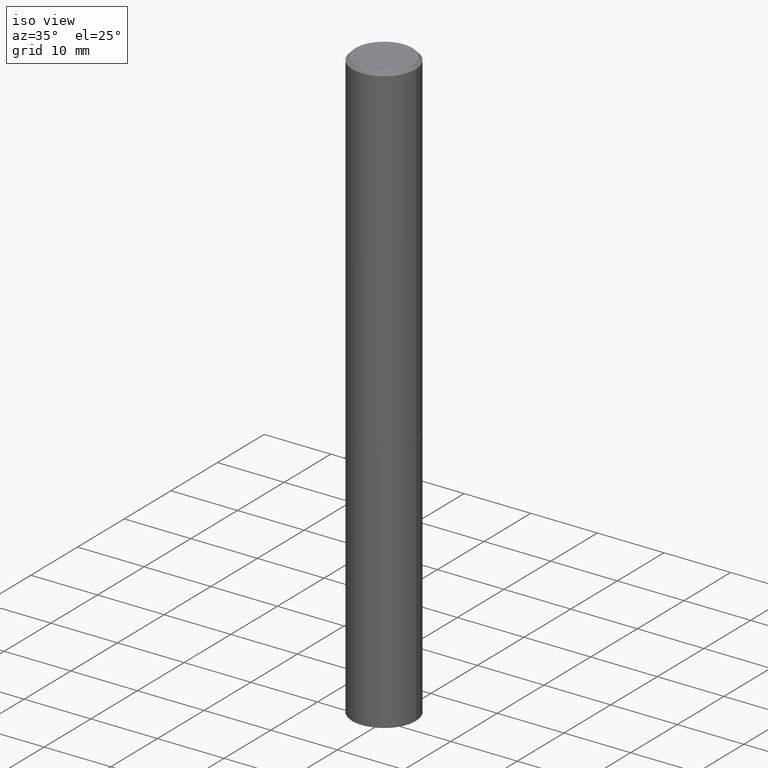
[diagram: clean part render]
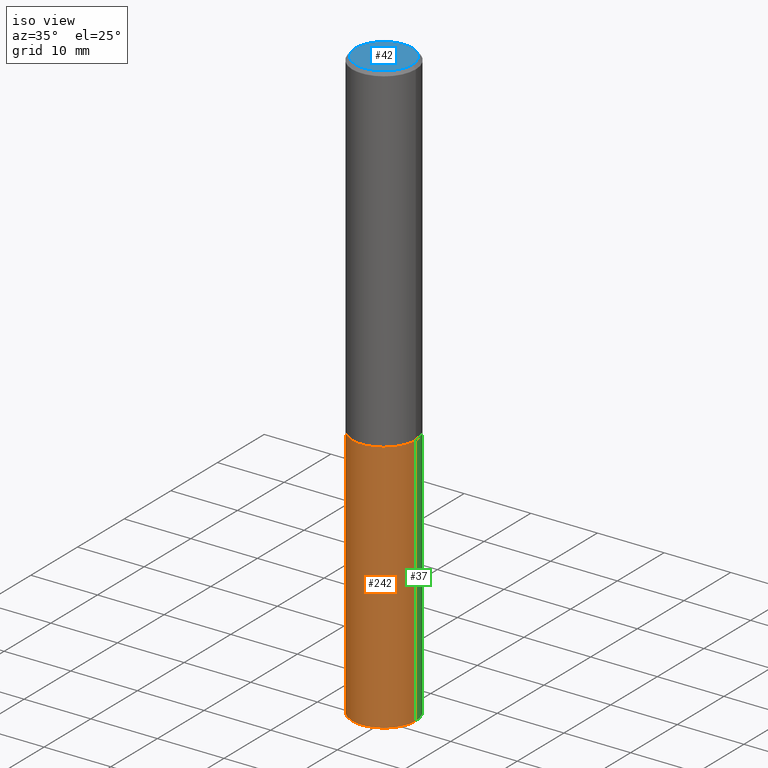
[diagram: same view with three faces highlighted in distinct colors, each labeled with its STEP entity id]
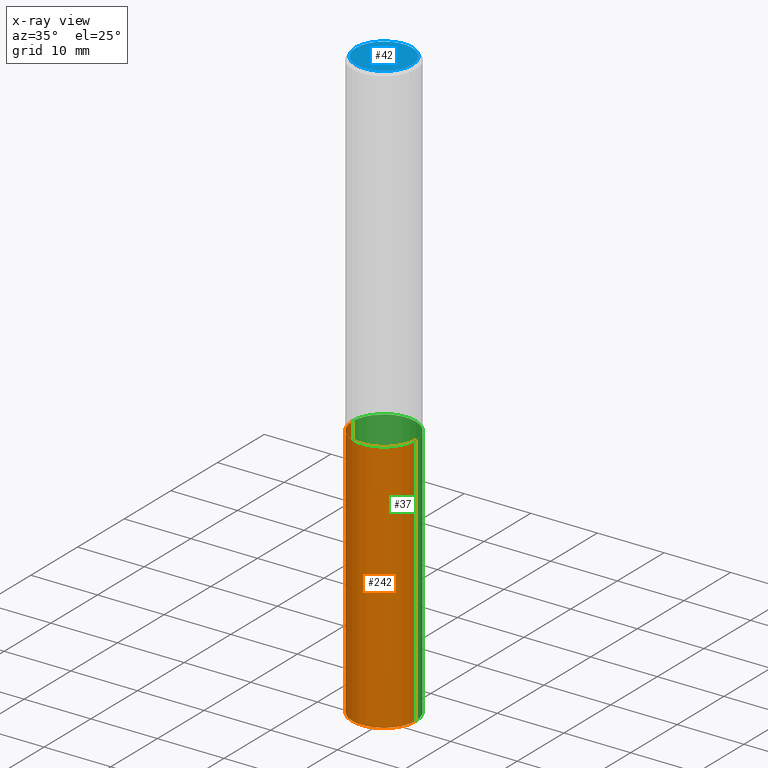
[diagram: x-ray of the same camera — body ghosted, the three highlighted faces saturated]
A machine part, iso view with three faces highlighted in distinct colors.
The next image is the same camera in x-ray (body ghosted, the three faces saturated) — at least one of them is partly hidden behind the body in this view.
Their STEP definitions:

[orange] entity #242 — the highlighted cylindrical surface (partial cylindrical patch) has radius 4.7625 mm, axis along (-0, 0, 1).
#17 = CIRCLE ( 'NONE', #26, 0.1875000000000000278 ) ;
#26 = AXIS2_PLACEMENT_3D ( 'NONE', #350, #265, #124 ) ;
#30 = VERTEX_POINT ( 'NONE', #49 ) ;
#32 = VECTOR ( 'NONE', #174, 39.37007874015748143 ) ;
#49 = CARTESIAN_POINT ( 'NONE',  ( 0.1875000000000000278, -1.352949018801718277E-14, -3.500000000000000000 ) ) ;
#62 = AXIS2_PLACEMENT_3D ( 'NONE', #185, #288, #225 ) ;
#65 = VERTEX_POINT ( 'NONE', #352 ) ;
#71 = CIRCLE ( 'NONE', #281, 0.1875000000000000278 ) ;
#101 = VERTEX_POINT ( 'NONE', #160 ) ;
#117 = CARTESIAN_POINT ( 'NONE',  ( -0.1875000000000000278, 1.332267629550188046E-15, -9.223003294227947991E-30 ) ) ;
#120 = EDGE_CURVE ( 'NONE', #65, #347, #271, .T. ) ;
#124 = DIRECTION ( 'NONE',  ( 1.000000000000000000, -6.982962677686266711E-15, 0.000000000000000000 ) ) ;
#146 = CARTESIAN_POINT ( 'NONE',  ( -0.1875000000000000278, -8.269306052268462011E-15, -1.999999999999999778 ) ) ;
#160 = CARTESIAN_POINT ( 'NONE',  ( 0.1875000000000000278, -8.292268179752465385E-15, -1.999999999999999778 ) ) ;
#170 = EDGE_CURVE ( 'NONE', #347, #101, #17, .T. ) ;
#174 = DIRECTION ( 'NONE',  ( -2.445468806185136877E-29, 3.491481338843145188E-15, 1.000000000000000000 ) ) ;
#183 = ORIENTED_EDGE ( 'NONE', *, *, #325, .T. ) ;
#185 = CARTESIAN_POINT ( 'NONE',  ( 0.000000000000000000, 0.000000000000000000, 0.000000000000000000 ) ) ;
#190 = ORIENTED_EDGE ( 'NONE', *, *, #342, .T. ) ;
#198 = LINE ( 'NONE', #203, #344 ) ;
#203 = CARTESIAN_POINT ( 'NONE',  ( 0.1875000000000000278, -1.309305502066175008E-15, 9.142831454617381013E-30 ) ) ;
#225 = DIRECTION ( 'NONE',  ( 1.000000000000000000, -6.982962677686265922E-15, 4.876176775795935793E-29 ) ) ;
#231 = CARTESIAN_POINT ( 'NONE',  ( 8.559140821647976968E-29, -1.222018468595100934E-14, -3.500000000000000000 ) ) ;
#240 = FACE_OUTER_BOUND ( 'NONE', #354, .T. ) ;
#242 = ADVANCED_FACE ( 'NONE', ( #240 ), #315, .T. ) ;
#262 = ORIENTED_EDGE ( 'NONE', *, *, #120, .F. ) ;
#265 = DIRECTION ( 'NONE',  ( -2.445468806185136597E-29, 3.491481338843145583E-15, 1.000000000000000000 ) ) ;
#271 = LINE ( 'NONE', #117, #32 ) ;
#281 = AXIS2_PLACEMENT_3D ( 'NONE', #231, #307, #340 ) ;
#282 = ORIENTED_EDGE ( 'NONE', *, *, #170, .F. ) ;
#288 = DIRECTION ( 'NONE',  ( -2.445468806185136597E-29, 3.491481338843145583E-15, 1.000000000000000000 ) ) ;
#307 = DIRECTION ( 'NONE',  ( -2.445468806185136597E-29, 3.491481338843145583E-15, 1.000000000000000000 ) ) ;
#315 = CYLINDRICAL_SURFACE ( 'NONE', #62, 0.1875000000000000278 ) ;
#325 = EDGE_CURVE ( 'NONE', #30, #101, #198, .T. ) ;
#340 = DIRECTION ( 'NONE',  ( 1.000000000000000000, -6.982962677686261189E-15, 0.000000000000000000 ) ) ;
#342 = EDGE_CURVE ( 'NONE', #65, #30, #71, .T. ) ;
#344 = VECTOR ( 'NONE', #365, 39.37007874015748143 ) ;
#347 = VERTEX_POINT ( 'NONE', #146 ) ;
#350 = CARTESIAN_POINT ( 'NONE',  ( 4.890937612370272633E-29, -6.982962677686290376E-15, -1.999999999999999778 ) ) ;
#352 = CARTESIAN_POINT ( 'NONE',  ( -0.1875000000000000278, -8.269306052268462011E-15, -3.500000000000000000 ) ) ;
#354 = EDGE_LOOP ( 'NONE', ( #262, #190, #183, #282 ) ) ;
#365 = DIRECTION ( 'NONE',  ( -2.445468806185136877E-29, 3.491481338843145188E-15, 1.000000000000000000 ) ) ;

[blue] entity #42 — the highlighted planar face has unit normal (0, -0, -1).
#2 = DIRECTION ( 'NONE',  ( -2.445468806185136597E-29, 3.491481338843145583E-15, 1.000000000000000000 ) ) ;
#42 = ADVANCED_FACE ( 'NONE', ( #143 ), #278, .F. ) ;
#51 = CARTESIAN_POINT ( 'NONE',  ( 0.1674999999999997602, -1.252653207992876711E-15, 4.268512490108880748E-18 ) ) ;
#69 = CARTESIAN_POINT ( 'NONE',  ( -1.043851414335219820E-46, 1.490343170380447200E-32, 4.268512490100411279E-18 ) ) ;
#72 = DIRECTION ( 'NONE',  ( -2.445468806185136597E-29, 3.491481338843145583E-15, 1.000000000000000000 ) ) ;
#76 = DIRECTION ( 'NONE',  ( 2.438088387897960049E-29, -3.491481338843145188E-15, -1.000000000000000000 ) ) ;
#96 = DIRECTION ( 'NONE',  ( 1.000000000000000000, -6.982962677686265922E-15, 4.875936752492899929E-29 ) ) ;
#97 = AXIS2_PLACEMENT_3D ( 'NONE', #114, #76, #334 ) ;
#99 = VERTEX_POINT ( 'NONE', #244 ) ;
#108 = CIRCLE ( 'NONE', #312, 0.1674999999999997602 ) ;
#114 = CARTESIAN_POINT ( 'NONE',  ( 1.169646248512447820E-15, 0.1674999999999997602, -5.826888680111757675E-16 ) ) ;
#115 = EDGE_CURVE ( 'NONE', #99, #324, #188, .T. ) ;
#123 = EDGE_CURVE ( 'NONE', #324, #99, #108, .T. ) ;
#143 = FACE_OUTER_BOUND ( 'NONE', #359, .T. ) ;
#151 = CARTESIAN_POINT ( 'NONE',  ( -1.043851414335219820E-46, 1.490343170380447200E-32, 4.268512490100411279E-18 ) ) ;
#187 = DIRECTION ( 'NONE',  ( 1.000000000000000000, -6.982962677686265922E-15, 4.875936752492899929E-29 ) ) ;
#188 = CIRCLE ( 'NONE', #339, 0.1674999999999997602 ) ;
#206 = ORIENTED_EDGE ( 'NONE', *, *, #123, .T. ) ;
#212 = ORIENTED_EDGE ( 'NONE', *, *, #115, .T. ) ;
#244 = CARTESIAN_POINT ( 'NONE',  ( -0.1674999999999997602, 1.204561061900878878E-15, 4.268512490092109750E-18 ) ) ;
#278 = PLANE ( 'NONE',  #97 ) ;
#312 = AXIS2_PLACEMENT_3D ( 'NONE', #151, #2, #96 ) ;
#324 = VERTEX_POINT ( 'NONE', #51 ) ;
#334 = DIRECTION ( 'NONE',  ( -1.000000000000000000, 6.982962677686265922E-15, -4.876176775795935793E-29 ) ) ;
#339 = AXIS2_PLACEMENT_3D ( 'NONE', #69, #72, #187 ) ;
#359 = EDGE_LOOP ( 'NONE', ( #212, #206 ) ) ;

[green] entity #37 — the highlighted cylindrical surface (partial cylindrical patch) has radius 4.7625 mm, axis along (-0, 0, 1).
#20 = ORIENTED_EDGE ( 'NONE', *, *, #158, .F. ) ;
#30 = VERTEX_POINT ( 'NONE', #49 ) ;
#32 = VECTOR ( 'NONE', #174, 39.37007874015748143 ) ;
#37 = ADVANCED_FACE ( 'NONE', ( #109 ), #163, .T. ) ;
#49 = CARTESIAN_POINT ( 'NONE',  ( 0.1875000000000000278, -1.352949018801718277E-14, -3.500000000000000000 ) ) ;
#65 = VERTEX_POINT ( 'NONE', #352 ) ;
#66 = DIRECTION ( 'NONE',  ( -2.445468806185136597E-29, 3.491481338843145583E-15, 1.000000000000000000 ) ) ;
#68 = ORIENTED_EDGE ( 'NONE', *, *, #176, .T. ) ;
#101 = VERTEX_POINT ( 'NONE', #160 ) ;
#109 = FACE_OUTER_BOUND ( 'NONE', #296, .T. ) ;
#117 = CARTESIAN_POINT ( 'NONE',  ( -0.1875000000000000278, 1.332267629550188046E-15, -9.223003294227947991E-30 ) ) ;
#120 = EDGE_CURVE ( 'NONE', #65, #347, #271, .T. ) ;
#131 = CARTESIAN_POINT ( 'NONE',  ( 4.890937612370272633E-29, -6.982962677686290376E-15, -1.999999999999999778 ) ) ;
#146 = CARTESIAN_POINT ( 'NONE',  ( -0.1875000000000000278, -8.269306052268462011E-15, -1.999999999999999778 ) ) ;
#148 = AXIS2_PLACEMENT_3D ( 'NONE', #155, #66, #179 ) ;
#153 = DIRECTION ( 'NONE',  ( -2.445468806185136597E-29, 3.491481338843145583E-15, 1.000000000000000000 ) ) ;
#155 = CARTESIAN_POINT ( 'NONE',  ( 8.559140821647976968E-29, -1.222018468595100934E-14, -3.500000000000000000 ) ) ;
#158 = EDGE_CURVE ( 'NONE', #101, #347, #328, .T. ) ;
#160 = CARTESIAN_POINT ( 'NONE',  ( 0.1875000000000000278, -8.292268179752465385E-15, -1.999999999999999778 ) ) ;
#163 = CYLINDRICAL_SURFACE ( 'NONE', #184, 0.1875000000000000278 ) ;
#165 = AXIS2_PLACEMENT_3D ( 'NONE', #131, #153, #343 ) ;
#174 = DIRECTION ( 'NONE',  ( -2.445468806185136877E-29, 3.491481338843145188E-15, 1.000000000000000000 ) ) ;
#176 = EDGE_CURVE ( 'NONE', #30, #65, #302, .T. ) ;
#179 = DIRECTION ( 'NONE',  ( 1.000000000000000000, -6.982962677686261189E-15, 0.000000000000000000 ) ) ;
#184 = AXIS2_PLACEMENT_3D ( 'NONE', #220, #301, #229 ) ;
#198 = LINE ( 'NONE', #203, #344 ) ;
#203 = CARTESIAN_POINT ( 'NONE',  ( 0.1875000000000000278, -1.309305502066175008E-15, 9.142831454617381013E-30 ) ) ;
#218 = ORIENTED_EDGE ( 'NONE', *, *, #120, .T. ) ;
#220 = CARTESIAN_POINT ( 'NONE',  ( 0.000000000000000000, 0.000000000000000000, 0.000000000000000000 ) ) ;
#229 = DIRECTION ( 'NONE',  ( 1.000000000000000000, -6.982962677686265922E-15, 4.876176775795935793E-29 ) ) ;
#271 = LINE ( 'NONE', #117, #32 ) ;
#296 = EDGE_LOOP ( 'NONE', ( #68, #218, #20, #322 ) ) ;
#301 = DIRECTION ( 'NONE',  ( -2.445468806185136597E-29, 3.491481338843145583E-15, 1.000000000000000000 ) ) ;
#302 = CIRCLE ( 'NONE', #148, 0.1875000000000000278 ) ;
#322 = ORIENTED_EDGE ( 'NONE', *, *, #325, .F. ) ;
#325 = EDGE_CURVE ( 'NONE', #30, #101, #198, .T. ) ;
#328 = CIRCLE ( 'NONE', #165, 0.1875000000000000278 ) ;
#343 = DIRECTION ( 'NONE',  ( 1.000000000000000000, -6.982962677686266711E-15, 0.000000000000000000 ) ) ;
#344 = VECTOR ( 'NONE', #365, 39.37007874015748143 ) ;
#347 = VERTEX_POINT ( 'NONE', #146 ) ;
#352 = CARTESIAN_POINT ( 'NONE',  ( -0.1875000000000000278, -8.269306052268462011E-15, -3.500000000000000000 ) ) ;
#365 = DIRECTION ( 'NONE',  ( -2.445468806185136877E-29, 3.491481338843145188E-15, 1.000000000000000000 ) ) ;